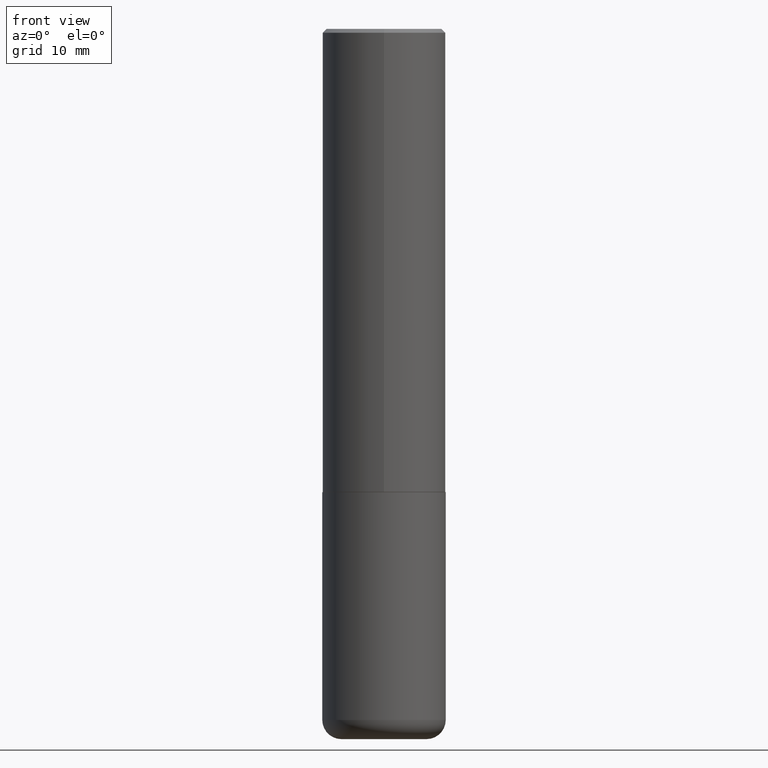
[diagram: clean part render]
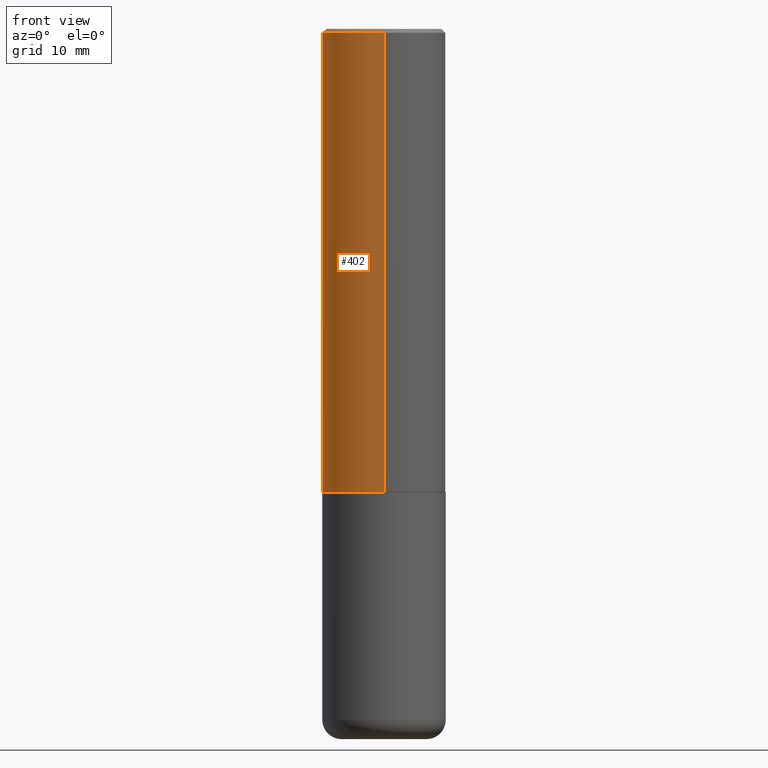
[diagram: same view with one face highlighted and labeled with its STEP entity id]
A machine part, front view. The second image highlights one B-rep face of the part: STEP entity #402.
In plain terms, the highlighted cylindrical surface (partial cylindrical patch) has radius 7.9997 mm, axis along (-0, 0, 1).
Its self-contained STEP definition (entity closure, byte-faithful):
#16 = FACE_OUTER_BOUND ( 'NONE', #19, .T. ) ;
#19 = EDGE_LOOP ( 'NONE', ( #251, #47, #320, #341 ) ) ;
#23 = EDGE_CURVE ( 'NONE', #86, #116, #355, .T. ) ;
#25 = CIRCLE ( 'NONE', #412, 0.3149500000000000077 ) ;
#28 = DIRECTION ( 'NONE',  ( -6.982962677686265922E-15, -1.000000000000000000, 3.469564049740290009E-15 ) ) ;
#46 = DIRECTION ( 'NONE',  ( -6.982962677686264344E-15, -1.000000000000000000, 3.491715375355152192E-15 ) ) ;
#47 = ORIENTED_EDGE ( 'NONE', *, *, #114, .T. ) ;
#50 = VECTOR ( 'NONE', #319, 39.37007874015748143 ) ;
#55 = CARTESIAN_POINT ( 'NONE',  ( 0.000000000000000000, 0.000000000000000000, 0.000000000000000000 ) ) ;
#59 = CARTESIAN_POINT ( 'NONE',  ( 5.773855061750216491E-29, -8.244638344288584824E-15, -2.361199999999999743 ) ) ;
#69 = DIRECTION ( 'NONE',  ( -2.445305379362280801E-29, 3.491715375355152192E-15, 1.000000000000000000 ) ) ;
#77 = LINE ( 'NONE', #186, #50 ) ;
#84 = AXIS2_PLACEMENT_3D ( 'NONE', #59, #322, #28 ) ;
#86 = VERTEX_POINT ( 'NONE', #170 ) ;
#114 = EDGE_CURVE ( 'NONE', #181, #86, #270, .T. ) ;
#116 = VERTEX_POINT ( 'NONE', #162 ) ;
#162 = CARTESIAN_POINT ( 'NONE',  ( -2.160713844398143363E-15, -0.3149500000000000632, -0.01999999999999896999 ) ) ;
#170 = CARTESIAN_POINT ( 'NONE',  ( -2.199284095337233467E-15, -0.3149500000000085564, -2.361199999999998411 ) ) ;
#171 = DIRECTION ( 'NONE',  ( -2.445305379362280801E-29, 3.491715375355152192E-15, 1.000000000000000000 ) ) ;
#181 = VERTEX_POINT ( 'NONE', #364 ) ;
#186 = CARTESIAN_POINT ( 'NONE',  ( 2.237854346276435985E-15, 0.3149500000000001743, -1.099715757468105786E-15 ) ) ;
#217 = EDGE_CURVE ( 'NONE', #318, #116, #25, .T. ) ;
#251 = ORIENTED_EDGE ( 'NONE', *, *, #414, .F. ) ;
#266 = DIRECTION ( 'NONE',  ( -6.982962677686265922E-15, -1.000000000000000000, 3.496670018878889100E-15 ) ) ;
#270 = CIRCLE ( 'NONE', #84, 0.3149500000000002853 ) ;
#279 = CARTESIAN_POINT ( 'NONE',  ( 2.199284095337289871E-15, 0.3149499999999999522, -0.02000000000000117309 ) ) ;
#299 = CARTESIAN_POINT ( 'NONE',  ( -2.199284095337290265E-15, -0.3149500000000001743, 1.099715757468105786E-15 ) ) ;
#318 = VERTEX_POINT ( 'NONE', #279 ) ;
#319 = DIRECTION ( 'NONE',  ( -2.445305379362280801E-29, 3.491715375355152192E-15, 1.000000000000000000 ) ) ;
#320 = ORIENTED_EDGE ( 'NONE', *, *, #23, .T. ) ;
#322 = DIRECTION ( 'NONE',  ( -2.445305379362280801E-29, 3.491715375355152192E-15, 1.000000000000000000 ) ) ;
#339 = DIRECTION ( 'NONE',  ( -2.445305379362280801E-29, 3.491715375355152192E-15, 1.000000000000000000 ) ) ;
#341 = ORIENTED_EDGE ( 'NONE', *, *, #217, .F. ) ;
#351 = AXIS2_PLACEMENT_3D ( 'NONE', #55, #339, #46 ) ;
#355 = LINE ( 'NONE', #299, #398 ) ;
#364 = CARTESIAN_POINT ( 'NONE',  ( 2.237854346276465567E-15, 0.3149499999999920141, -2.361200000000000632 ) ) ;
#398 = VECTOR ( 'NONE', #69, 39.37007874015748143 ) ;
#402 = ADVANCED_FACE ( 'NONE', ( #16 ), #408, .T. ) ;
#403 = CARTESIAN_POINT ( 'NONE',  ( 4.890610758724579539E-31, -6.983430750710329184E-17, -0.02000000000000007327 ) ) ;
#408 = CYLINDRICAL_SURFACE ( 'NONE', #351, 0.3149500000000001743 ) ;
#412 = AXIS2_PLACEMENT_3D ( 'NONE', #403, #171, #266 ) ;
#414 = EDGE_CURVE ( 'NONE', #181, #318, #77, .T. ) ;